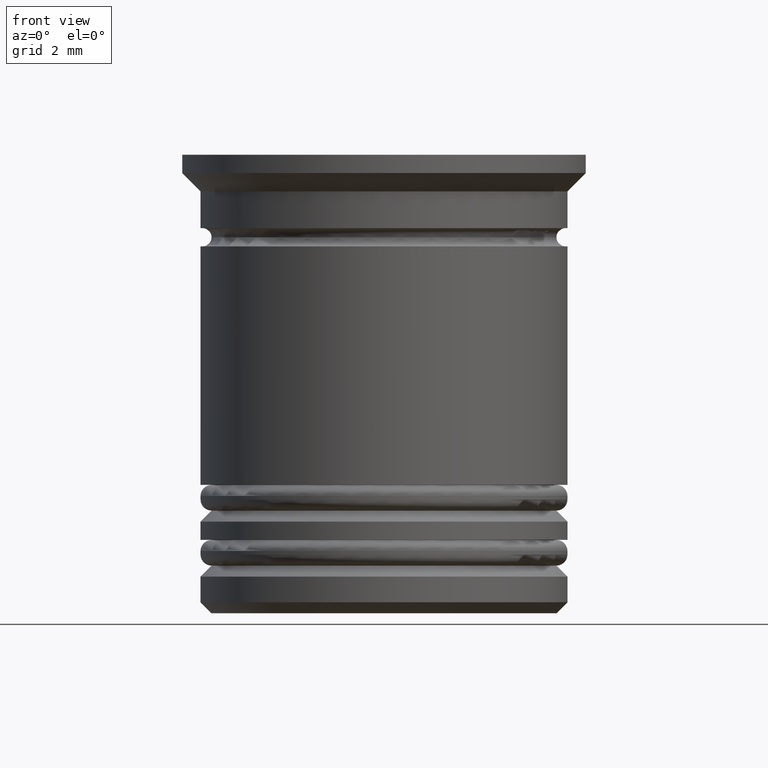
[diagram: clean part render]
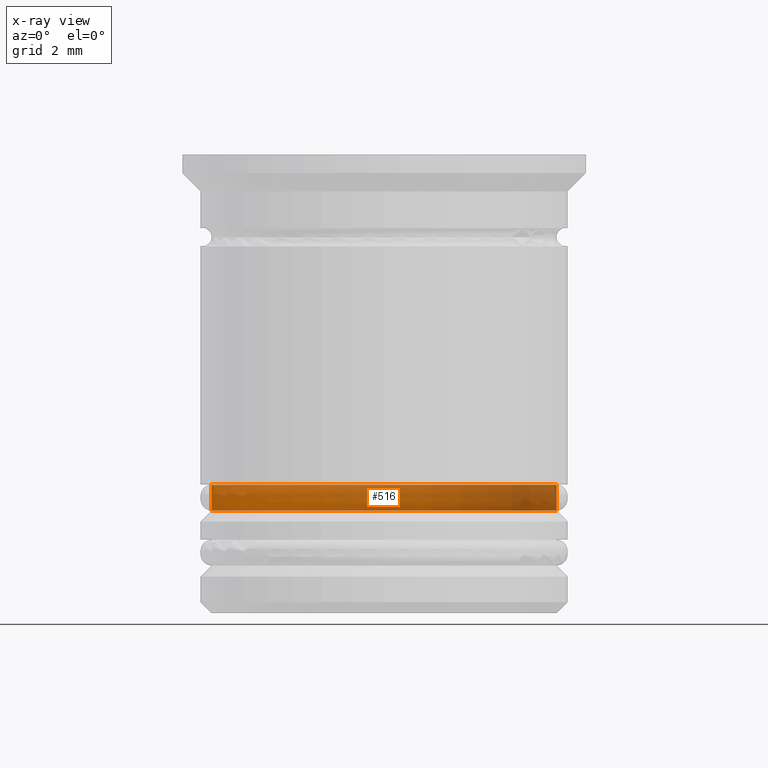
[diagram: x-ray — body ghosted, one internal face saturated and labeled with its STEP entity id]
A machine part, front view, then the same camera in x-ray: the body is ghosted and one INTERNAL B-rep face — a face not visible from any outside direction — is saturated and labeled: STEP entity #516.
In plain terms, the highlighted cylindrical surface (partial cylindrical patch) has radius 4.7 mm, axis along (-0, -0, 1).
Its self-contained STEP definition (entity closure, byte-faithful):
#127 = CIRCLE ( 'NONE', #1081, 4.700000000000001066 ) ;
#133 = VECTOR ( 'NONE', #2062, 1000.000000000000000 ) ;
#159 = DIRECTION ( 'NONE',  ( -0.000000000000000000, -0.000000000000000000, 1.000000000000000000 ) ) ;
#195 = CARTESIAN_POINT ( 'NONE',  ( 0.000000000000000000, 0.000000000000000000, -9.700000000000008171 ) ) ;
#216 = DIRECTION ( 'NONE',  ( -0.000000000000000000, -0.000000000000000000, 1.000000000000000000 ) ) ;
#357 = ORIENTED_EDGE ( 'NONE', *, *, #1440, .T. ) ;
#371 = DIRECTION ( 'NONE',  ( -0.000000000000000000, -0.000000000000000000, 1.000000000000000000 ) ) ;
#404 = LINE ( 'NONE', #1059, #466 ) ;
#466 = VECTOR ( 'NONE', #1367, 1000.000000000000000 ) ;
#487 = CARTESIAN_POINT ( 'NONE',  ( 4.700000000000001066, 0.000000000000000000, -9.000000000000001776 ) ) ;
#501 = DIRECTION ( 'NONE',  ( 1.000000000000000000, 0.000000000000000000, 0.000000000000000000 ) ) ;
#504 = VERTEX_POINT ( 'NONE', #487 ) ;
#511 = FACE_OUTER_BOUND ( 'NONE', #1092, .T. ) ;
#516 = ADVANCED_FACE ( 'NONE', ( #511 ), #1768, .T. ) ;
#537 = CARTESIAN_POINT ( 'NONE',  ( 0.000000000000000000, 0.000000000000000000, 0.000000000000000000 ) ) ;
#540 = CIRCLE ( 'NONE', #1349, 4.700000000000001066 ) ;
#608 = ORIENTED_EDGE ( 'NONE', *, *, #1120, .F. ) ;
#616 = LINE ( 'NONE', #781, #133 ) ;
#726 = DIRECTION ( 'NONE',  ( 1.000000000000000000, 0.000000000000000000, 0.000000000000000000 ) ) ;
#781 = CARTESIAN_POINT ( 'NONE',  ( -4.700000000000001066, 5.755839955992560641E-16, 0.000000000000000000 ) ) ;
#784 = CARTESIAN_POINT ( 'NONE',  ( 4.700000000000001066, 0.000000000000000000, -9.700000000000008171 ) ) ;
#1021 = DIRECTION ( 'NONE',  ( -1.000000000000000000, 0.000000000000000000, 0.000000000000000000 ) ) ;
#1059 = CARTESIAN_POINT ( 'NONE',  ( 4.700000000000001066, 0.000000000000000000, 0.000000000000000000 ) ) ;
#1061 = EDGE_CURVE ( 'NONE', #1547, #504, #404, .T. ) ;
#1067 = CARTESIAN_POINT ( 'NONE',  ( 0.000000000000000000, 0.000000000000000000, -9.000000000000001776 ) ) ;
#1081 = AXIS2_PLACEMENT_3D ( 'NONE', #1067, #371, #726 ) ;
#1092 = EDGE_LOOP ( 'NONE', ( #357, #1983, #608, #1211 ) ) ;
#1120 = EDGE_CURVE ( 'NONE', #504, #1999, #127, .T. ) ;
#1202 = VERTEX_POINT ( 'NONE', #1268 ) ;
#1211 = ORIENTED_EDGE ( 'NONE', *, *, #1061, .F. ) ;
#1268 = CARTESIAN_POINT ( 'NONE',  ( -4.700000000000001066, 5.755839955992560641E-16, -9.700000000000008171 ) ) ;
#1349 = AXIS2_PLACEMENT_3D ( 'NONE', #195, #216, #1021 ) ;
#1367 = DIRECTION ( 'NONE',  ( -0.000000000000000000, -0.000000000000000000, 1.000000000000000000 ) ) ;
#1409 = AXIS2_PLACEMENT_3D ( 'NONE', #537, #159, #501 ) ;
#1440 = EDGE_CURVE ( 'NONE', #1547, #1202, #540, .T. ) ;
#1547 = VERTEX_POINT ( 'NONE', #784 ) ;
#1768 = CYLINDRICAL_SURFACE ( 'NONE', #1409, 4.700000000000001066 ) ;
#1890 = CARTESIAN_POINT ( 'NONE',  ( -4.700000000000001066, 5.755839955992560641E-16, -9.000000000000001776 ) ) ;
#1983 = ORIENTED_EDGE ( 'NONE', *, *, #2052, .T. ) ;
#1999 = VERTEX_POINT ( 'NONE', #1890 ) ;
#2052 = EDGE_CURVE ( 'NONE', #1202, #1999, #616, .T. ) ;
#2062 = DIRECTION ( 'NONE',  ( -0.000000000000000000, -0.000000000000000000, 1.000000000000000000 ) ) ;